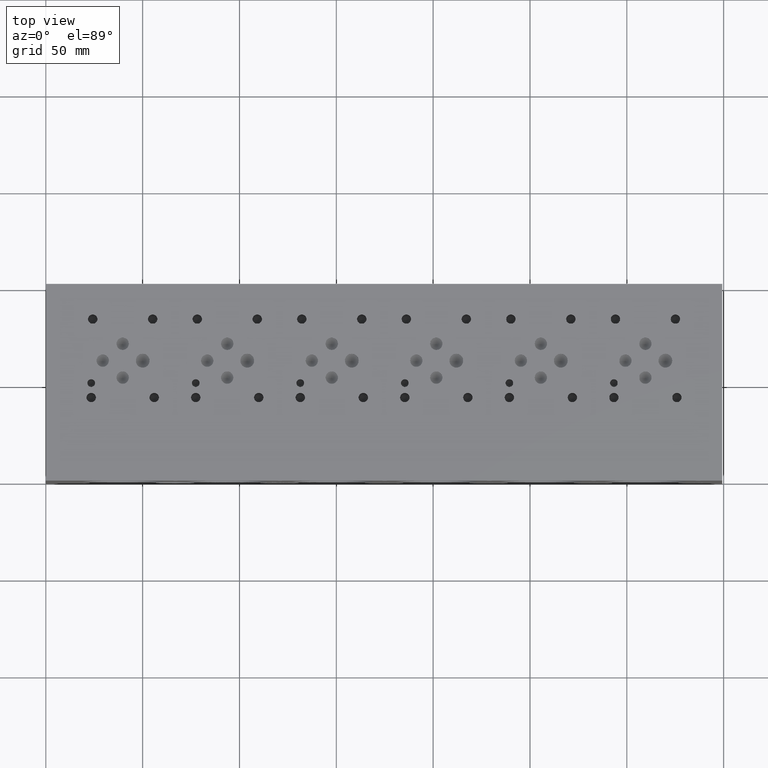
[diagram: clean part render]
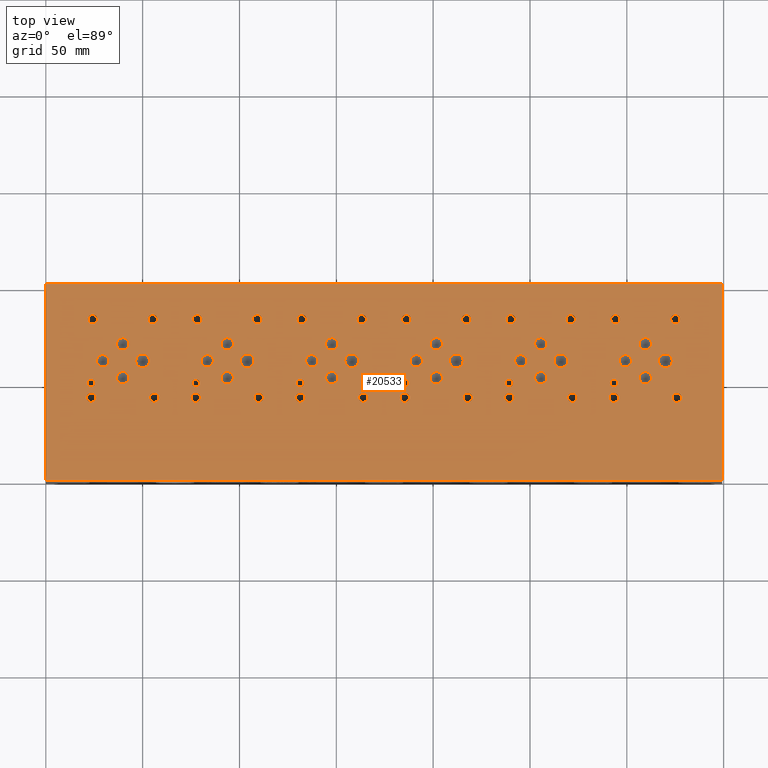
[diagram: same view with one face highlighted and labeled with its STEP entity id]
A machine part, top view. The second image highlights one B-rep face of the part: STEP entity #20533.
In plain terms, the highlighted planar face has unit normal (0, 0, 1).
Its self-contained STEP definition (entity closure, byte-faithful):
#982=CIRCLE('',#21623,3.5687);
#983=CIRCLE('',#21624,3.5687);
#986=CIRCLE('',#21629,3.5687);
#987=CIRCLE('',#21630,3.5687);
#990=CIRCLE('',#21635,3.5687);
#991=CIRCLE('',#21636,3.5687);
#994=CIRCLE('',#21641,3.5687);
#995=CIRCLE('',#21642,3.5687);
#998=CIRCLE('',#21647,3.5687);
#999=CIRCLE('',#21648,3.5687);
#1002=CIRCLE('',#21653,3.5687);
#1003=CIRCLE('',#21654,3.5687);
#1006=CIRCLE('',#21659,3.175);
#1007=CIRCLE('',#21660,3.175);
#1010=CIRCLE('',#21665,3.175);
#1011=CIRCLE('',#21666,3.175);
#1014=CIRCLE('',#21671,3.175);
#1015=CIRCLE('',#21672,3.175);
#1018=CIRCLE('',#21677,3.175);
#1019=CIRCLE('',#21678,3.175);
#1022=CIRCLE('',#21683,3.175);
#1023=CIRCLE('',#21684,3.175);
#1026=CIRCLE('',#21689,3.175);
#1027=CIRCLE('',#21690,3.175);
#1030=CIRCLE('',#21695,3.175);
#1031=CIRCLE('',#21696,3.175);
#1034=CIRCLE('',#21701,3.175);
#1035=CIRCLE('',#21702,3.175);
#1038=CIRCLE('',#21707,3.175);
#1039=CIRCLE('',#21708,3.175);
#1042=CIRCLE('',#21713,3.175);
#1043=CIRCLE('',#21714,3.175);
#1046=CIRCLE('',#21719,3.175);
#1047=CIRCLE('',#21720,3.175);
#1050=CIRCLE('',#21725,3.175);
#1051=CIRCLE('',#21726,3.175);
#1054=CIRCLE('',#21731,3.175);
#1055=CIRCLE('',#21732,3.175);
#1058=CIRCLE('',#21737,3.175);
#1059=CIRCLE('',#21738,3.175);
#1062=CIRCLE('',#21743,3.175);
#1063=CIRCLE('',#21744,3.175);
#1066=CIRCLE('',#21749,3.175);
#1067=CIRCLE('',#21750,3.175);
#1070=CIRCLE('',#21755,3.175);
#1071=CIRCLE('',#21756,3.175);
#1074=CIRCLE('',#21761,3.175);
#1075=CIRCLE('',#21762,3.175);
#1078=CIRCLE('',#21767,1.9812);
#1079=CIRCLE('',#21768,1.9812);
#1082=CIRCLE('',#21773,1.9812);
#1083=CIRCLE('',#21774,1.9812);
#1086=CIRCLE('',#21779,1.9812);
#1087=CIRCLE('',#21780,1.9812);
#1090=CIRCLE('',#21785,1.9812);
#1091=CIRCLE('',#21786,1.9812);
#1094=CIRCLE('',#21791,1.9812);
#1095=CIRCLE('',#21792,1.9812);
#1098=CIRCLE('',#21797,1.9812);
#1099=CIRCLE('',#21798,1.9812);
#1105=CIRCLE('',#21807,2.413);
#1106=CIRCLE('',#21808,2.413);
#1112=CIRCLE('',#21818,2.413);
#1113=CIRCLE('',#21819,2.413);
#1119=CIRCLE('',#21829,2.413);
#1120=CIRCLE('',#21830,2.413);
#1126=CIRCLE('',#21840,2.413);
#1127=CIRCLE('',#21841,2.413);
#1133=CIRCLE('',#21851,2.413);
#1134=CIRCLE('',#21852,2.413);
#1140=CIRCLE('',#21862,2.413);
#1141=CIRCLE('',#21863,2.413);
#1147=CIRCLE('',#21873,2.413);
#1148=CIRCLE('',#21874,2.413);
#1154=CIRCLE('',#21884,2.413);
#1155=CIRCLE('',#21885,2.413);
#1161=CIRCLE('',#21895,2.413);
#1162=CIRCLE('',#21896,2.413);
#1168=CIRCLE('',#21906,2.413);
#1169=CIRCLE('',#21907,2.413);
#1175=CIRCLE('',#21917,2.413);
#1176=CIRCLE('',#21918,2.413);
#1182=CIRCLE('',#21928,2.413);
#1183=CIRCLE('',#21929,2.413);
#1189=CIRCLE('',#21939,2.413);
#1190=CIRCLE('',#21940,2.413);
#1196=CIRCLE('',#21950,2.413);
#1197=CIRCLE('',#21951,2.413);
#1203=CIRCLE('',#21961,2.413);
#1204=CIRCLE('',#21962,2.413);
#1210=CIRCLE('',#21972,2.413);
#1211=CIRCLE('',#21973,2.413);
#1217=CIRCLE('',#21983,2.413);
#1218=CIRCLE('',#21984,2.413);
#1224=CIRCLE('',#21994,2.413);
#1225=CIRCLE('',#21995,2.413);
#1231=CIRCLE('',#22005,2.413);
#1232=CIRCLE('',#22006,2.413);
#1238=CIRCLE('',#22016,2.413);
#1239=CIRCLE('',#22017,2.413);
#1245=CIRCLE('',#22027,2.413);
#1246=CIRCLE('',#22028,2.413);
#1252=CIRCLE('',#22038,2.413);
#1253=CIRCLE('',#22039,2.413);
#1259=CIRCLE('',#22049,2.413);
#1260=CIRCLE('',#22050,2.413);
#1266=CIRCLE('',#22060,2.413);
#1267=CIRCLE('',#22061,2.413);
#1908=FACE_BOUND('',#4265,.T.);
#1909=FACE_BOUND('',#4266,.T.);
#1910=FACE_BOUND('',#4267,.T.);
#1911=FACE_BOUND('',#4268,.T.);
#1912=FACE_BOUND('',#4269,.T.);
#1913=FACE_BOUND('',#4270,.T.);
#1914=FACE_BOUND('',#4271,.T.);
#1915=FACE_BOUND('',#4272,.T.);
#1916=FACE_BOUND('',#4273,.T.);
#1917=FACE_BOUND('',#4274,.T.);
#1918=FACE_BOUND('',#4275,.T.);
#1919=FACE_BOUND('',#4276,.T.);
#1920=FACE_BOUND('',#4277,.T.);
#1921=FACE_BOUND('',#4278,.T.);
#1922=FACE_BOUND('',#4279,.T.);
#1923=FACE_BOUND('',#4280,.T.);
#1924=FACE_BOUND('',#4281,.T.);
#1925=FACE_BOUND('',#4282,.T.);
#1926=FACE_BOUND('',#4283,.T.);
#1927=FACE_BOUND('',#4284,.T.);
#1928=FACE_BOUND('',#4285,.T.);
#1929=FACE_BOUND('',#4286,.T.);
#1930=FACE_BOUND('',#4287,.T.);
#1931=FACE_BOUND('',#4288,.T.);
#1932=FACE_BOUND('',#4289,.T.);
#1933=FACE_BOUND('',#4290,.T.);
#1934=FACE_BOUND('',#4291,.T.);
#1935=FACE_BOUND('',#4292,.T.);
#1936=FACE_BOUND('',#4293,.T.);
#1937=FACE_BOUND('',#4294,.T.);
#1938=FACE_BOUND('',#4295,.T.);
#1939=FACE_BOUND('',#4296,.T.);
#1940=FACE_BOUND('',#4297,.T.);
#1941=FACE_BOUND('',#4298,.T.);
#1942=FACE_BOUND('',#4299,.T.);
#1943=FACE_BOUND('',#4300,.T.);
#1944=FACE_BOUND('',#4301,.T.);
#1945=FACE_BOUND('',#4302,.T.);
#1946=FACE_BOUND('',#4303,.T.);
#1947=FACE_BOUND('',#4304,.T.);
#1948=FACE_BOUND('',#4305,.T.);
#1949=FACE_BOUND('',#4306,.T.);
#1950=FACE_BOUND('',#4307,.T.);
#1951=FACE_BOUND('',#4308,.T.);
#1952=FACE_BOUND('',#4309,.T.);
#1953=FACE_BOUND('',#4310,.T.);
#1954=FACE_BOUND('',#4311,.T.);
#1955=FACE_BOUND('',#4312,.T.);
#1956=FACE_BOUND('',#4313,.T.);
#1957=FACE_BOUND('',#4314,.T.);
#1958=FACE_BOUND('',#4315,.T.);
#1959=FACE_BOUND('',#4316,.T.);
#1960=FACE_BOUND('',#4317,.T.);
#1961=FACE_BOUND('',#4318,.T.);
#3035=FACE_OUTER_BOUND('',#4264,.T.);
#4264=EDGE_LOOP('',(#18181,#18182,#18183,#18184));
#4265=EDGE_LOOP('',(#18185,#18186));
#4266=EDGE_LOOP('',(#18187,#18188));
#4267=EDGE_LOOP('',(#18189,#18190));
#4268=EDGE_LOOP('',(#18191,#18192));
#4269=EDGE_LOOP('',(#18193,#18194));
#4270=EDGE_LOOP('',(#18195,#18196));
#4271=EDGE_LOOP('',(#18197,#18198));
#4272=EDGE_LOOP('',(#18199,#18200));
#4273=EDGE_LOOP('',(#18201,#18202));
#4274=EDGE_LOOP('',(#18203,#18204));
#4275=EDGE_LOOP('',(#18205,#18206));
#4276=EDGE_LOOP('',(#18207,#18208));
#4277=EDGE_LOOP('',(#18209,#18210));
#4278=EDGE_LOOP('',(#18211,#18212));
#4279=EDGE_LOOP('',(#18213,#18214));
#4280=EDGE_LOOP('',(#18215,#18216));
#4281=EDGE_LOOP('',(#18217,#18218));
#4282=EDGE_LOOP('',(#18219,#18220));
#4283=EDGE_LOOP('',(#18221,#18222));
#4284=EDGE_LOOP('',(#18223,#18224));
#4285=EDGE_LOOP('',(#18225,#18226));
#4286=EDGE_LOOP('',(#18227,#18228));
#4287=EDGE_LOOP('',(#18229,#18230));
#4288=EDGE_LOOP('',(#18231,#18232));
#4289=EDGE_LOOP('',(#18233,#18234));
#4290=EDGE_LOOP('',(#18235,#18236));
#4291=EDGE_LOOP('',(#18237,#18238));
#4292=EDGE_LOOP('',(#18239,#18240));
#4293=EDGE_LOOP('',(#18241,#18242));
#4294=EDGE_LOOP('',(#18243,#18244));
#4295=EDGE_LOOP('',(#18245,#18246));
#4296=EDGE_LOOP('',(#18247,#18248));
#4297=EDGE_LOOP('',(#18249,#18250));
#4298=EDGE_LOOP('',(#18251,#18252));
#4299=EDGE_LOOP('',(#18253,#18254));
#4300=EDGE_LOOP('',(#18255,#18256));
#4301=EDGE_LOOP('',(#18257,#18258));
#4302=EDGE_LOOP('',(#18259,#18260));
#4303=EDGE_LOOP('',(#18261,#18262));
#4304=EDGE_LOOP('',(#18263,#18264));
#4305=EDGE_LOOP('',(#18265,#18266));
#4306=EDGE_LOOP('',(#18267,#18268));
#4307=EDGE_LOOP('',(#18269,#18270));
#4308=EDGE_LOOP('',(#18271,#18272));
#4309=EDGE_LOOP('',(#18273,#18274));
#4310=EDGE_LOOP('',(#18275,#18276));
#4311=EDGE_LOOP('',(#18277,#18278));
#4312=EDGE_LOOP('',(#18279,#18280));
#4313=EDGE_LOOP('',(#18281,#18282));
#4314=EDGE_LOOP('',(#18283,#18284));
#4315=EDGE_LOOP('',(#18285,#18286));
#4316=EDGE_LOOP('',(#18287,#18288));
#4317=EDGE_LOOP('',(#18289,#18290));
#4318=EDGE_LOOP('',(#18291,#18292));
#4355=LINE('',#26877,#6046);
#5224=LINE('',#31486,#6915);
#5282=LINE('',#31757,#6973);
#6010=LINE('',#35897,#7701);
#6046=VECTOR('',#22132,10.);
#6915=VECTOR('',#23547,10.);
#6973=VECTOR('',#23659,10.);
#7701=VECTOR('',#26793,10.);
#7726=VERTEX_POINT('',#26874);
#7727=VERTEX_POINT('',#26876);
#8602=VERTEX_POINT('',#31484);
#8660=VERTEX_POINT('',#31756);
#9363=VERTEX_POINT('',#34984);
#9364=VERTEX_POINT('',#34985);
#9368=VERTEX_POINT('',#34997);
#9369=VERTEX_POINT('',#34998);
#9373=VERTEX_POINT('',#35010);
#9374=VERTEX_POINT('',#35011);
#9378=VERTEX_POINT('',#35023);
#9379=VERTEX_POINT('',#35024);
#9383=VERTEX_POINT('',#35036);
#9384=VERTEX_POINT('',#35037);
#9388=VERTEX_POINT('',#35049);
#9389=VERTEX_POINT('',#35050);
#9393=VERTEX_POINT('',#35062);
#9394=VERTEX_POINT('',#35063);
#9398=VERTEX_POINT('',#35075);
#9399=VERTEX_POINT('',#35076);
#9403=VERTEX_POINT('',#35088);
#9404=VERTEX_POINT('',#35089);
#9408=VERTEX_POINT('',#35101);
#9409=VERTEX_POINT('',#35102);
#9413=VERTEX_POINT('',#35114);
#9414=VERTEX_POINT('',#35115);
#9418=VERTEX_POINT('',#35127);
#9419=VERTEX_POINT('',#35128);
#9423=VERTEX_POINT('',#35140);
#9424=VERTEX_POINT('',#35141);
#9428=VERTEX_POINT('',#35153);
#9429=VERTEX_POINT('',#35154);
#9433=VERTEX_POINT('',#35166);
#9434=VERTEX_POINT('',#35167);
#9438=VERTEX_POINT('',#35179);
#9439=VERTEX_POINT('',#35180);
#9443=VERTEX_POINT('',#35192);
#9444=VERTEX_POINT('',#35193);
#9448=VERTEX_POINT('',#35205);
#9449=VERTEX_POINT('',#35206);
#9453=VERTEX_POINT('',#35218);
#9454=VERTEX_POINT('',#35219);
#9458=VERTEX_POINT('',#35231);
#9459=VERTEX_POINT('',#35232);
#9463=VERTEX_POINT('',#35244);
#9464=VERTEX_POINT('',#35245);
#9468=VERTEX_POINT('',#35257);
#9469=VERTEX_POINT('',#35258);
#9473=VERTEX_POINT('',#35270);
#9474=VERTEX_POINT('',#35271);
#9478=VERTEX_POINT('',#35283);
#9479=VERTEX_POINT('',#35284);
#9483=VERTEX_POINT('',#35296);
#9484=VERTEX_POINT('',#35297);
#9488=VERTEX_POINT('',#35309);
#9489=VERTEX_POINT('',#35310);
#9493=VERTEX_POINT('',#35322);
#9494=VERTEX_POINT('',#35323);
#9498=VERTEX_POINT('',#35335);
#9499=VERTEX_POINT('',#35336);
#9503=VERTEX_POINT('',#35348);
#9504=VERTEX_POINT('',#35349);
#9508=VERTEX_POINT('',#35361);
#9509=VERTEX_POINT('',#35362);
#9516=VERTEX_POINT('',#35381);
#9517=VERTEX_POINT('',#35382);
#9524=VERTEX_POINT('',#35403);
#9525=VERTEX_POINT('',#35404);
#9532=VERTEX_POINT('',#35425);
#9533=VERTEX_POINT('',#35426);
#9540=VERTEX_POINT('',#35447);
#9541=VERTEX_POINT('',#35448);
#9548=VERTEX_POINT('',#35469);
#9549=VERTEX_POINT('',#35470);
#9556=VERTEX_POINT('',#35491);
#9557=VERTEX_POINT('',#35492);
#9564=VERTEX_POINT('',#35513);
#9565=VERTEX_POINT('',#35514);
#9572=VERTEX_POINT('',#35535);
#9573=VERTEX_POINT('',#35536);
#9580=VERTEX_POINT('',#35557);
#9581=VERTEX_POINT('',#35558);
#9588=VERTEX_POINT('',#35579);
#9589=VERTEX_POINT('',#35580);
#9596=VERTEX_POINT('',#35601);
#9597=VERTEX_POINT('',#35602);
#9604=VERTEX_POINT('',#35623);
#9605=VERTEX_POINT('',#35624);
#9612=VERTEX_POINT('',#35645);
#9613=VERTEX_POINT('',#35646);
#9620=VERTEX_POINT('',#35667);
#9621=VERTEX_POINT('',#35668);
#9628=VERTEX_POINT('',#35689);
#9629=VERTEX_POINT('',#35690);
#9636=VERTEX_POINT('',#35711);
#9637=VERTEX_POINT('',#35712);
#9644=VERTEX_POINT('',#35733);
#9645=VERTEX_POINT('',#35734);
#9652=VERTEX_POINT('',#35755);
#9653=VERTEX_POINT('',#35756);
#9660=VERTEX_POINT('',#35777);
#9661=VERTEX_POINT('',#35778);
#9668=VERTEX_POINT('',#35799);
#9669=VERTEX_POINT('',#35800);
#9676=VERTEX_POINT('',#35821);
#9677=VERTEX_POINT('',#35822);
#9684=VERTEX_POINT('',#35843);
#9685=VERTEX_POINT('',#35844);
#9692=VERTEX_POINT('',#35865);
#9693=VERTEX_POINT('',#35866);
#9700=VERTEX_POINT('',#35887);
#9701=VERTEX_POINT('',#35888);
#9737=EDGE_CURVE('',#7727,#7726,#4355,.T.);
#10978=EDGE_CURVE('',#7726,#8602,#5224,.T.);
#11060=EDGE_CURVE('',#8660,#7727,#5282,.T.);
#12148=EDGE_CURVE('',#9363,#9364,#982,.T.);
#12149=EDGE_CURVE('',#9364,#9363,#983,.T.);
#12154=EDGE_CURVE('',#9368,#9369,#986,.T.);
#12155=EDGE_CURVE('',#9369,#9368,#987,.T.);
#12160=EDGE_CURVE('',#9373,#9374,#990,.T.);
#12161=EDGE_CURVE('',#9374,#9373,#991,.T.);
#12166=EDGE_CURVE('',#9378,#9379,#994,.T.);
#12167=EDGE_CURVE('',#9379,#9378,#995,.T.);
#12172=EDGE_CURVE('',#9383,#9384,#998,.T.);
#12173=EDGE_CURVE('',#9384,#9383,#999,.T.);
#12178=EDGE_CURVE('',#9388,#9389,#1002,.T.);
#12179=EDGE_CURVE('',#9389,#9388,#1003,.T.);
#12184=EDGE_CURVE('',#9393,#9394,#1006,.T.);
#12185=EDGE_CURVE('',#9394,#9393,#1007,.T.);
#12190=EDGE_CURVE('',#9398,#9399,#1010,.T.);
#12191=EDGE_CURVE('',#9399,#9398,#1011,.T.);
#12196=EDGE_CURVE('',#9403,#9404,#1014,.T.);
#12197=EDGE_CURVE('',#9404,#9403,#1015,.T.);
#12202=EDGE_CURVE('',#9408,#9409,#1018,.T.);
#12203=EDGE_CURVE('',#9409,#9408,#1019,.T.);
#12208=EDGE_CURVE('',#9413,#9414,#1022,.T.);
#12209=EDGE_CURVE('',#9414,#9413,#1023,.T.);
#12214=EDGE_CURVE('',#9418,#9419,#1026,.T.);
#12215=EDGE_CURVE('',#9419,#9418,#1027,.T.);
#12220=EDGE_CURVE('',#9423,#9424,#1030,.T.);
#12221=EDGE_CURVE('',#9424,#9423,#1031,.T.);
#12226=EDGE_CURVE('',#9428,#9429,#1034,.T.);
#12227=EDGE_CURVE('',#9429,#9428,#1035,.T.);
#12232=EDGE_CURVE('',#9433,#9434,#1038,.T.);
#12233=EDGE_CURVE('',#9434,#9433,#1039,.T.);
#12238=EDGE_CURVE('',#9438,#9439,#1042,.T.);
#12239=EDGE_CURVE('',#9439,#9438,#1043,.T.);
#12244=EDGE_CURVE('',#9443,#9444,#1046,.T.);
#12245=EDGE_CURVE('',#9444,#9443,#1047,.T.);
#12250=EDGE_CURVE('',#9448,#9449,#1050,.T.);
#12251=EDGE_CURVE('',#9449,#9448,#1051,.T.);
#12256=EDGE_CURVE('',#9453,#9454,#1054,.T.);
#12257=EDGE_CURVE('',#9454,#9453,#1055,.T.);
#12262=EDGE_CURVE('',#9458,#9459,#1058,.T.);
#12263=EDGE_CURVE('',#9459,#9458,#1059,.T.);
#12268=EDGE_CURVE('',#9463,#9464,#1062,.T.);
#12269=EDGE_CURVE('',#9464,#9463,#1063,.T.);
#12274=EDGE_CURVE('',#9468,#9469,#1066,.T.);
#12275=EDGE_CURVE('',#9469,#9468,#1067,.T.);
#12280=EDGE_CURVE('',#9473,#9474,#1070,.T.);
#12281=EDGE_CURVE('',#9474,#9473,#1071,.T.);
#12286=EDGE_CURVE('',#9478,#9479,#1074,.T.);
#12287=EDGE_CURVE('',#9479,#9478,#1075,.T.);
#12292=EDGE_CURVE('',#9483,#9484,#1078,.T.);
#12293=EDGE_CURVE('',#9484,#9483,#1079,.T.);
#12298=EDGE_CURVE('',#9488,#9489,#1082,.T.);
#12299=EDGE_CURVE('',#9489,#9488,#1083,.T.);
#12304=EDGE_CURVE('',#9493,#9494,#1086,.T.);
#12305=EDGE_CURVE('',#9494,#9493,#1087,.T.);
#12310=EDGE_CURVE('',#9498,#9499,#1090,.T.);
#12311=EDGE_CURVE('',#9499,#9498,#1091,.T.);
#12316=EDGE_CURVE('',#9503,#9504,#1094,.T.);
#12317=EDGE_CURVE('',#9504,#9503,#1095,.T.);
#12322=EDGE_CURVE('',#9508,#9509,#1098,.T.);
#12323=EDGE_CURVE('',#9509,#9508,#1099,.T.);
#12331=EDGE_CURVE('',#9516,#9517,#1105,.T.);
#12332=EDGE_CURVE('',#9517,#9516,#1106,.T.);
#12341=EDGE_CURVE('',#9524,#9525,#1112,.T.);
#12342=EDGE_CURVE('',#9525,#9524,#1113,.T.);
#12351=EDGE_CURVE('',#9532,#9533,#1119,.T.);
#12352=EDGE_CURVE('',#9533,#9532,#1120,.T.);
#12361=EDGE_CURVE('',#9540,#9541,#1126,.T.);
#12362=EDGE_CURVE('',#9541,#9540,#1127,.T.);
#12371=EDGE_CURVE('',#9548,#9549,#1133,.T.);
#12372=EDGE_CURVE('',#9549,#9548,#1134,.T.);
#12381=EDGE_CURVE('',#9556,#9557,#1140,.T.);
#12382=EDGE_CURVE('',#9557,#9556,#1141,.T.);
#12391=EDGE_CURVE('',#9564,#9565,#1147,.T.);
#12392=EDGE_CURVE('',#9565,#9564,#1148,.T.);
#12401=EDGE_CURVE('',#9572,#9573,#1154,.T.);
#12402=EDGE_CURVE('',#9573,#9572,#1155,.T.);
#12411=EDGE_CURVE('',#9580,#9581,#1161,.T.);
#12412=EDGE_CURVE('',#9581,#9580,#1162,.T.);
#12421=EDGE_CURVE('',#9588,#9589,#1168,.T.);
#12422=EDGE_CURVE('',#9589,#9588,#1169,.T.);
#12431=EDGE_CURVE('',#9596,#9597,#1175,.T.);
#12432=EDGE_CURVE('',#9597,#9596,#1176,.T.);
#12441=EDGE_CURVE('',#9604,#9605,#1182,.T.);
#12442=EDGE_CURVE('',#9605,#9604,#1183,.T.);
#12451=EDGE_CURVE('',#9612,#9613,#1189,.T.);
#12452=EDGE_CURVE('',#9613,#9612,#1190,.T.);
#12461=EDGE_CURVE('',#9620,#9621,#1196,.T.);
#12462=EDGE_CURVE('',#9621,#9620,#1197,.T.);
#12471=EDGE_CURVE('',#9628,#9629,#1203,.T.);
#12472=EDGE_CURVE('',#9629,#9628,#1204,.T.);
#12481=EDGE_CURVE('',#9636,#9637,#1210,.T.);
#12482=EDGE_CURVE('',#9637,#9636,#1211,.T.);
#12491=EDGE_CURVE('',#9644,#9645,#1217,.T.);
#12492=EDGE_CURVE('',#9645,#9644,#1218,.T.);
#12501=EDGE_CURVE('',#9652,#9653,#1224,.T.);
#12502=EDGE_CURVE('',#9653,#9652,#1225,.T.);
#12511=EDGE_CURVE('',#9660,#9661,#1231,.T.);
#12512=EDGE_CURVE('',#9661,#9660,#1232,.T.);
#12521=EDGE_CURVE('',#9668,#9669,#1238,.T.);
#12522=EDGE_CURVE('',#9669,#9668,#1239,.T.);
#12531=EDGE_CURVE('',#9676,#9677,#1245,.T.);
#12532=EDGE_CURVE('',#9677,#9676,#1246,.T.);
#12541=EDGE_CURVE('',#9684,#9685,#1252,.T.);
#12542=EDGE_CURVE('',#9685,#9684,#1253,.T.);
#12551=EDGE_CURVE('',#9692,#9693,#1259,.T.);
#12552=EDGE_CURVE('',#9693,#9692,#1260,.T.);
#12561=EDGE_CURVE('',#9700,#9701,#1266,.T.);
#12562=EDGE_CURVE('',#9701,#9700,#1267,.T.);
#12566=EDGE_CURVE('',#8602,#8660,#6010,.T.);
#18181=ORIENTED_EDGE('',*,*,#9737,.T.);
#18182=ORIENTED_EDGE('',*,*,#10978,.T.);
#18183=ORIENTED_EDGE('',*,*,#12566,.T.);
#18184=ORIENTED_EDGE('',*,*,#11060,.T.);
#18185=ORIENTED_EDGE('',*,*,#12148,.T.);
#18186=ORIENTED_EDGE('',*,*,#12149,.T.);
#18187=ORIENTED_EDGE('',*,*,#12154,.T.);
#18188=ORIENTED_EDGE('',*,*,#12155,.T.);
#18189=ORIENTED_EDGE('',*,*,#12160,.T.);
#18190=ORIENTED_EDGE('',*,*,#12161,.T.);
#18191=ORIENTED_EDGE('',*,*,#12166,.T.);
#18192=ORIENTED_EDGE('',*,*,#12167,.T.);
#18193=ORIENTED_EDGE('',*,*,#12172,.T.);
#18194=ORIENTED_EDGE('',*,*,#12173,.T.);
#18195=ORIENTED_EDGE('',*,*,#12178,.T.);
#18196=ORIENTED_EDGE('',*,*,#12179,.T.);
#18197=ORIENTED_EDGE('',*,*,#12184,.T.);
#18198=ORIENTED_EDGE('',*,*,#12185,.T.);
#18199=ORIENTED_EDGE('',*,*,#12190,.T.);
#18200=ORIENTED_EDGE('',*,*,#12191,.T.);
#18201=ORIENTED_EDGE('',*,*,#12196,.T.);
#18202=ORIENTED_EDGE('',*,*,#12197,.T.);
#18203=ORIENTED_EDGE('',*,*,#12202,.T.);
#18204=ORIENTED_EDGE('',*,*,#12203,.T.);
#18205=ORIENTED_EDGE('',*,*,#12208,.T.);
#18206=ORIENTED_EDGE('',*,*,#12209,.T.);
#18207=ORIENTED_EDGE('',*,*,#12214,.T.);
#18208=ORIENTED_EDGE('',*,*,#12215,.T.);
#18209=ORIENTED_EDGE('',*,*,#12220,.T.);
#18210=ORIENTED_EDGE('',*,*,#12221,.T.);
#18211=ORIENTED_EDGE('',*,*,#12226,.T.);
#18212=ORIENTED_EDGE('',*,*,#12227,.T.);
#18213=ORIENTED_EDGE('',*,*,#12232,.T.);
#18214=ORIENTED_EDGE('',*,*,#12233,.T.);
#18215=ORIENTED_EDGE('',*,*,#12238,.T.);
#18216=ORIENTED_EDGE('',*,*,#12239,.T.);
#18217=ORIENTED_EDGE('',*,*,#12244,.T.);
#18218=ORIENTED_EDGE('',*,*,#12245,.T.);
#18219=ORIENTED_EDGE('',*,*,#12250,.T.);
#18220=ORIENTED_EDGE('',*,*,#12251,.T.);
#18221=ORIENTED_EDGE('',*,*,#12256,.T.);
#18222=ORIENTED_EDGE('',*,*,#12257,.T.);
#18223=ORIENTED_EDGE('',*,*,#12262,.T.);
#18224=ORIENTED_EDGE('',*,*,#12263,.T.);
#18225=ORIENTED_EDGE('',*,*,#12268,.T.);
#18226=ORIENTED_EDGE('',*,*,#12269,.T.);
#18227=ORIENTED_EDGE('',*,*,#12274,.T.);
#18228=ORIENTED_EDGE('',*,*,#12275,.T.);
#18229=ORIENTED_EDGE('',*,*,#12280,.T.);
#18230=ORIENTED_EDGE('',*,*,#12281,.T.);
#18231=ORIENTED_EDGE('',*,*,#12286,.T.);
#18232=ORIENTED_EDGE('',*,*,#12287,.T.);
#18233=ORIENTED_EDGE('',*,*,#12292,.T.);
#18234=ORIENTED_EDGE('',*,*,#12293,.T.);
#18235=ORIENTED_EDGE('',*,*,#12298,.T.);
#18236=ORIENTED_EDGE('',*,*,#12299,.T.);
#18237=ORIENTED_EDGE('',*,*,#12304,.T.);
#18238=ORIENTED_EDGE('',*,*,#12305,.T.);
#18239=ORIENTED_EDGE('',*,*,#12310,.T.);
#18240=ORIENTED_EDGE('',*,*,#12311,.T.);
#18241=ORIENTED_EDGE('',*,*,#12316,.T.);
#18242=ORIENTED_EDGE('',*,*,#12317,.T.);
#18243=ORIENTED_EDGE('',*,*,#12322,.T.);
#18244=ORIENTED_EDGE('',*,*,#12323,.T.);
#18245=ORIENTED_EDGE('',*,*,#12331,.T.);
#18246=ORIENTED_EDGE('',*,*,#12332,.T.);
#18247=ORIENTED_EDGE('',*,*,#12341,.T.);
#18248=ORIENTED_EDGE('',*,*,#12342,.T.);
#18249=ORIENTED_EDGE('',*,*,#12351,.T.);
#18250=ORIENTED_EDGE('',*,*,#12352,.T.);
#18251=ORIENTED_EDGE('',*,*,#12361,.T.);
#18252=ORIENTED_EDGE('',*,*,#12362,.T.);
#18253=ORIENTED_EDGE('',*,*,#12371,.T.);
#18254=ORIENTED_EDGE('',*,*,#12372,.T.);
#18255=ORIENTED_EDGE('',*,*,#12381,.T.);
#18256=ORIENTED_EDGE('',*,*,#12382,.T.);
#18257=ORIENTED_EDGE('',*,*,#12391,.T.);
#18258=ORIENTED_EDGE('',*,*,#12392,.T.);
#18259=ORIENTED_EDGE('',*,*,#12401,.T.);
#18260=ORIENTED_EDGE('',*,*,#12402,.T.);
#18261=ORIENTED_EDGE('',*,*,#12411,.T.);
#18262=ORIENTED_EDGE('',*,*,#12412,.T.);
#18263=ORIENTED_EDGE('',*,*,#12421,.T.);
#18264=ORIENTED_EDGE('',*,*,#12422,.T.);
#18265=ORIENTED_EDGE('',*,*,#12431,.T.);
#18266=ORIENTED_EDGE('',*,*,#12432,.T.);
#18267=ORIENTED_EDGE('',*,*,#12441,.T.);
#18268=ORIENTED_EDGE('',*,*,#12442,.T.);
#18269=ORIENTED_EDGE('',*,*,#12451,.T.);
#18270=ORIENTED_EDGE('',*,*,#12452,.T.);
#18271=ORIENTED_EDGE('',*,*,#12461,.T.);
#18272=ORIENTED_EDGE('',*,*,#12462,.T.);
#18273=ORIENTED_EDGE('',*,*,#12471,.T.);
#18274=ORIENTED_EDGE('',*,*,#12472,.T.);
#18275=ORIENTED_EDGE('',*,*,#12481,.T.);
#18276=ORIENTED_EDGE('',*,*,#12482,.T.);
#18277=ORIENTED_EDGE('',*,*,#12491,.T.);
#18278=ORIENTED_EDGE('',*,*,#12492,.T.);
#18279=ORIENTED_EDGE('',*,*,#12501,.T.);
#18280=ORIENTED_EDGE('',*,*,#12502,.T.);
#18281=ORIENTED_EDGE('',*,*,#12511,.T.);
#18282=ORIENTED_EDGE('',*,*,#12512,.T.);
#18283=ORIENTED_EDGE('',*,*,#12521,.T.);
#18284=ORIENTED_EDGE('',*,*,#12522,.T.);
#18285=ORIENTED_EDGE('',*,*,#12531,.T.);
#18286=ORIENTED_EDGE('',*,*,#12532,.T.);
#18287=ORIENTED_EDGE('',*,*,#12541,.T.);
#18288=ORIENTED_EDGE('',*,*,#12542,.T.);
#18289=ORIENTED_EDGE('',*,*,#12551,.T.);
#18290=ORIENTED_EDGE('',*,*,#12552,.T.);
#18291=ORIENTED_EDGE('',*,*,#12561,.T.);
#18292=ORIENTED_EDGE('',*,*,#12562,.T.);
#18804=PLANE('',#22067);
#20533=ADVANCED_FACE('',(#3035,#1908,#1909,#1910,#1911,#1912,#1913,#1914,
#1915,#1916,#1917,#1918,#1919,#1920,#1921,#1922,#1923,#1924,#1925,#1926,
#1927,#1928,#1929,#1930,#1931,#1932,#1933,#1934,#1935,#1936,#1937,#1938,
#1939,#1940,#1941,#1942,#1943,#1944,#1945,#1946,#1947,#1948,#1949,#1950,
#1951,#1952,#1953,#1954,#1955,#1956,#1957,#1958,#1959,#1960,#1961),#18804,
 .T.);
#21623=AXIS2_PLACEMENT_3D('',#34986,#25777,#25778);
#21624=AXIS2_PLACEMENT_3D('',#34987,#25779,#25780);
#21629=AXIS2_PLACEMENT_3D('',#34999,#25791,#25792);
#21630=AXIS2_PLACEMENT_3D('',#35000,#25793,#25794);
#21635=AXIS2_PLACEMENT_3D('',#35012,#25805,#25806);
#21636=AXIS2_PLACEMENT_3D('',#35013,#25807,#25808);
#21641=AXIS2_PLACEMENT_3D('',#35025,#25819,#25820);
#21642=AXIS2_PLACEMENT_3D('',#35026,#25821,#25822);
#21647=AXIS2_PLACEMENT_3D('',#35038,#25833,#25834);
#21648=AXIS2_PLACEMENT_3D('',#35039,#25835,#25836);
#21653=AXIS2_PLACEMENT_3D('',#35051,#25847,#25848);
#21654=AXIS2_PLACEMENT_3D('',#35052,#25849,#25850);
#21659=AXIS2_PLACEMENT_3D('',#35064,#25861,#25862);
#21660=AXIS2_PLACEMENT_3D('',#35065,#25863,#25864);
#21665=AXIS2_PLACEMENT_3D('',#35077,#25875,#25876);
#21666=AXIS2_PLACEMENT_3D('',#35078,#25877,#25878);
#21671=AXIS2_PLACEMENT_3D('',#35090,#25889,#25890);
#21672=AXIS2_PLACEMENT_3D('',#35091,#25891,#25892);
#21677=AXIS2_PLACEMENT_3D('',#35103,#25903,#25904);
#21678=AXIS2_PLACEMENT_3D('',#35104,#25905,#25906);
#21683=AXIS2_PLACEMENT_3D('',#35116,#25917,#25918);
#21684=AXIS2_PLACEMENT_3D('',#35117,#25919,#25920);
#21689=AXIS2_PLACEMENT_3D('',#35129,#25931,#25932);
#21690=AXIS2_PLACEMENT_3D('',#35130,#25933,#25934);
#21695=AXIS2_PLACEMENT_3D('',#35142,#25945,#25946);
#21696=AXIS2_PLACEMENT_3D('',#35143,#25947,#25948);
#21701=AXIS2_PLACEMENT_3D('',#35155,#25959,#25960);
#21702=AXIS2_PLACEMENT_3D('',#35156,#25961,#25962);
#21707=AXIS2_PLACEMENT_3D('',#35168,#25973,#25974);
#21708=AXIS2_PLACEMENT_3D('',#35169,#25975,#25976);
#21713=AXIS2_PLACEMENT_3D('',#35181,#25987,#25988);
#21714=AXIS2_PLACEMENT_3D('',#35182,#25989,#25990);
#21719=AXIS2_PLACEMENT_3D('',#35194,#26001,#26002);
#21720=AXIS2_PLACEMENT_3D('',#35195,#26003,#26004);
#21725=AXIS2_PLACEMENT_3D('',#35207,#26015,#26016);
#21726=AXIS2_PLACEMENT_3D('',#35208,#26017,#26018);
#21731=AXIS2_PLACEMENT_3D('',#35220,#26029,#26030);
#21732=AXIS2_PLACEMENT_3D('',#35221,#26031,#26032);
#21737=AXIS2_PLACEMENT_3D('',#35233,#26043,#26044);
#21738=AXIS2_PLACEMENT_3D('',#35234,#26045,#26046);
#21743=AXIS2_PLACEMENT_3D('',#35246,#26057,#26058);
#21744=AXIS2_PLACEMENT_3D('',#35247,#26059,#26060);
#21749=AXIS2_PLACEMENT_3D('',#35259,#26071,#26072);
#21750=AXIS2_PLACEMENT_3D('',#35260,#26073,#26074);
#21755=AXIS2_PLACEMENT_3D('',#35272,#26085,#26086);
#21756=AXIS2_PLACEMENT_3D('',#35273,#26087,#26088);
#21761=AXIS2_PLACEMENT_3D('',#35285,#26099,#26100);
#21762=AXIS2_PLACEMENT_3D('',#35286,#26101,#26102);
#21767=AXIS2_PLACEMENT_3D('',#35298,#26113,#26114);
#21768=AXIS2_PLACEMENT_3D('',#35299,#26115,#26116);
#21773=AXIS2_PLACEMENT_3D('',#35311,#26127,#26128);
#21774=AXIS2_PLACEMENT_3D('',#35312,#26129,#26130);
#21779=AXIS2_PLACEMENT_3D('',#35324,#26141,#26142);
#21780=AXIS2_PLACEMENT_3D('',#35325,#26143,#26144);
#21785=AXIS2_PLACEMENT_3D('',#35337,#26155,#26156);
#21786=AXIS2_PLACEMENT_3D('',#35338,#26157,#26158);
#21791=AXIS2_PLACEMENT_3D('',#35350,#26169,#26170);
#21792=AXIS2_PLACEMENT_3D('',#35351,#26171,#26172);
#21797=AXIS2_PLACEMENT_3D('',#35363,#26183,#26184);
#21798=AXIS2_PLACEMENT_3D('',#35364,#26185,#26186);
#21807=AXIS2_PLACEMENT_3D('',#35383,#26205,#26206);
#21808=AXIS2_PLACEMENT_3D('',#35384,#26207,#26208);
#21818=AXIS2_PLACEMENT_3D('',#35405,#26230,#26231);
#21819=AXIS2_PLACEMENT_3D('',#35406,#26232,#26233);
#21829=AXIS2_PLACEMENT_3D('',#35427,#26255,#26256);
#21830=AXIS2_PLACEMENT_3D('',#35428,#26257,#26258);
#21840=AXIS2_PLACEMENT_3D('',#35449,#26280,#26281);
#21841=AXIS2_PLACEMENT_3D('',#35450,#26282,#26283);
#21851=AXIS2_PLACEMENT_3D('',#35471,#26305,#26306);
#21852=AXIS2_PLACEMENT_3D('',#35472,#26307,#26308);
#21862=AXIS2_PLACEMENT_3D('',#35493,#26330,#26331);
#21863=AXIS2_PLACEMENT_3D('',#35494,#26332,#26333);
#21873=AXIS2_PLACEMENT_3D('',#35515,#26355,#26356);
#21874=AXIS2_PLACEMENT_3D('',#35516,#26357,#26358);
#21884=AXIS2_PLACEMENT_3D('',#35537,#26380,#26381);
#21885=AXIS2_PLACEMENT_3D('',#35538,#26382,#26383);
#21895=AXIS2_PLACEMENT_3D('',#35559,#26405,#26406);
#21896=AXIS2_PLACEMENT_3D('',#35560,#26407,#26408);
#21906=AXIS2_PLACEMENT_3D('',#35581,#26430,#26431);
#21907=AXIS2_PLACEMENT_3D('',#35582,#26432,#26433);
#21917=AXIS2_PLACEMENT_3D('',#35603,#26455,#26456);
#21918=AXIS2_PLACEMENT_3D('',#35604,#26457,#26458);
#21928=AXIS2_PLACEMENT_3D('',#35625,#26480,#26481);
#21929=AXIS2_PLACEMENT_3D('',#35626,#26482,#26483);
#21939=AXIS2_PLACEMENT_3D('',#35647,#26505,#26506);
#21940=AXIS2_PLACEMENT_3D('',#35648,#26507,#26508);
#21950=AXIS2_PLACEMENT_3D('',#35669,#26530,#26531);
#21951=AXIS2_PLACEMENT_3D('',#35670,#26532,#26533);
#21961=AXIS2_PLACEMENT_3D('',#35691,#26555,#26556);
#21962=AXIS2_PLACEMENT_3D('',#35692,#26557,#26558);
#21972=AXIS2_PLACEMENT_3D('',#35713,#26580,#26581);
#21973=AXIS2_PLACEMENT_3D('',#35714,#26582,#26583);
#21983=AXIS2_PLACEMENT_3D('',#35735,#26605,#26606);
#21984=AXIS2_PLACEMENT_3D('',#35736,#26607,#26608);
#21994=AXIS2_PLACEMENT_3D('',#35757,#26630,#26631);
#21995=AXIS2_PLACEMENT_3D('',#35758,#26632,#26633);
#22005=AXIS2_PLACEMENT_3D('',#35779,#26655,#26656);
#22006=AXIS2_PLACEMENT_3D('',#35780,#26657,#26658);
#22016=AXIS2_PLACEMENT_3D('',#35801,#26680,#26681);
#22017=AXIS2_PLACEMENT_3D('',#35802,#26682,#26683);
#22027=AXIS2_PLACEMENT_3D('',#35823,#26705,#26706);
#22028=AXIS2_PLACEMENT_3D('',#35824,#26707,#26708);
#22038=AXIS2_PLACEMENT_3D('',#35845,#26730,#26731);
#22039=AXIS2_PLACEMENT_3D('',#35846,#26732,#26733);
#22049=AXIS2_PLACEMENT_3D('',#35867,#26755,#26756);
#22050=AXIS2_PLACEMENT_3D('',#35868,#26757,#26758);
#22060=AXIS2_PLACEMENT_3D('',#35889,#26780,#26781);
#22061=AXIS2_PLACEMENT_3D('',#35890,#26782,#26783);
#22067=AXIS2_PLACEMENT_3D('',#35900,#26798,#26799);
#22132=DIRECTION('',(1.,0.,0.));
#23547=DIRECTION('',(0.,1.,0.));
#23659=DIRECTION('',(0.,-1.,0.));
#25777=DIRECTION('center_axis',(0.,0.,-1.));
#25778=DIRECTION('ref_axis',(1.,0.,0.));
#25779=DIRECTION('center_axis',(0.,0.,-1.));
#25780=DIRECTION('ref_axis',(1.,0.,0.));
#25791=DIRECTION('center_axis',(0.,0.,-1.));
#25792=DIRECTION('ref_axis',(1.,0.,0.));
#25793=DIRECTION('center_axis',(0.,0.,-1.));
#25794=DIRECTION('ref_axis',(1.,0.,0.));
#25805=DIRECTION('center_axis',(0.,0.,-1.));
#25806=DIRECTION('ref_axis',(1.,0.,0.));
#25807=DIRECTION('center_axis',(0.,0.,-1.));
#25808=DIRECTION('ref_axis',(1.,0.,0.));
#25819=DIRECTION('center_axis',(0.,0.,-1.));
#25820=DIRECTION('ref_axis',(1.,0.,0.));
#25821=DIRECTION('center_axis',(0.,0.,-1.));
#25822=DIRECTION('ref_axis',(1.,0.,0.));
#25833=DIRECTION('center_axis',(0.,0.,-1.));
#25834=DIRECTION('ref_axis',(1.,0.,0.));
#25835=DIRECTION('center_axis',(0.,0.,-1.));
#25836=DIRECTION('ref_axis',(1.,0.,0.));
#25847=DIRECTION('center_axis',(0.,0.,-1.));
#25848=DIRECTION('ref_axis',(1.,0.,0.));
#25849=DIRECTION('center_axis',(0.,0.,-1.));
#25850=DIRECTION('ref_axis',(1.,0.,0.));
#25861=DIRECTION('center_axis',(0.,0.,-1.));
#25862=DIRECTION('ref_axis',(1.,0.,0.));
#25863=DIRECTION('center_axis',(0.,0.,-1.));
#25864=DIRECTION('ref_axis',(1.,0.,0.));
#25875=DIRECTION('center_axis',(0.,0.,-1.));
#25876=DIRECTION('ref_axis',(1.,0.,0.));
#25877=DIRECTION('center_axis',(0.,0.,-1.));
#25878=DIRECTION('ref_axis',(1.,0.,0.));
#25889=DIRECTION('center_axis',(0.,0.,-1.));
#25890=DIRECTION('ref_axis',(1.,0.,0.));
#25891=DIRECTION('center_axis',(0.,0.,-1.));
#25892=DIRECTION('ref_axis',(1.,0.,0.));
#25903=DIRECTION('center_axis',(0.,0.,-1.));
#25904=DIRECTION('ref_axis',(1.,0.,0.));
#25905=DIRECTION('center_axis',(0.,0.,-1.));
#25906=DIRECTION('ref_axis',(1.,0.,0.));
#25917=DIRECTION('center_axis',(0.,0.,-1.));
#25918=DIRECTION('ref_axis',(1.,0.,0.));
#25919=DIRECTION('center_axis',(0.,0.,-1.));
#25920=DIRECTION('ref_axis',(1.,0.,0.));
#25931=DIRECTION('center_axis',(0.,0.,-1.));
#25932=DIRECTION('ref_axis',(1.,0.,0.));
#25933=DIRECTION('center_axis',(0.,0.,-1.));
#25934=DIRECTION('ref_axis',(1.,0.,0.));
#25945=DIRECTION('center_axis',(0.,0.,-1.));
#25946=DIRECTION('ref_axis',(1.,0.,0.));
#25947=DIRECTION('center_axis',(0.,0.,-1.));
#25948=DIRECTION('ref_axis',(1.,0.,0.));
#25959=DIRECTION('center_axis',(0.,0.,-1.));
#25960=DIRECTION('ref_axis',(1.,0.,0.));
#25961=DIRECTION('center_axis',(0.,0.,-1.));
#25962=DIRECTION('ref_axis',(1.,0.,0.));
#25973=DIRECTION('center_axis',(0.,0.,-1.));
#25974=DIRECTION('ref_axis',(1.,0.,0.));
#25975=DIRECTION('center_axis',(0.,0.,-1.));
#25976=DIRECTION('ref_axis',(1.,0.,0.));
#25987=DIRECTION('center_axis',(0.,0.,-1.));
#25988=DIRECTION('ref_axis',(1.,0.,0.));
#25989=DIRECTION('center_axis',(0.,0.,-1.));
#25990=DIRECTION('ref_axis',(1.,0.,0.));
#26001=DIRECTION('center_axis',(0.,0.,-1.));
#26002=DIRECTION('ref_axis',(1.,0.,0.));
#26003=DIRECTION('center_axis',(0.,0.,-1.));
#26004=DIRECTION('ref_axis',(1.,0.,0.));
#26015=DIRECTION('center_axis',(0.,0.,-1.));
#26016=DIRECTION('ref_axis',(1.,0.,0.));
#26017=DIRECTION('center_axis',(0.,0.,-1.));
#26018=DIRECTION('ref_axis',(1.,0.,0.));
#26029=DIRECTION('center_axis',(0.,0.,-1.));
#26030=DIRECTION('ref_axis',(1.,0.,0.));
#26031=DIRECTION('center_axis',(0.,0.,-1.));
#26032=DIRECTION('ref_axis',(1.,0.,0.));
#26043=DIRECTION('center_axis',(0.,0.,-1.));
#26044=DIRECTION('ref_axis',(1.,0.,0.));
#26045=DIRECTION('center_axis',(0.,0.,-1.));
#26046=DIRECTION('ref_axis',(1.,0.,0.));
#26057=DIRECTION('center_axis',(0.,0.,-1.));
#26058=DIRECTION('ref_axis',(1.,0.,0.));
#26059=DIRECTION('center_axis',(0.,0.,-1.));
#26060=DIRECTION('ref_axis',(1.,0.,0.));
#26071=DIRECTION('center_axis',(0.,0.,-1.));
#26072=DIRECTION('ref_axis',(1.,0.,0.));
#26073=DIRECTION('center_axis',(0.,0.,-1.));
#26074=DIRECTION('ref_axis',(1.,0.,0.));
#26085=DIRECTION('center_axis',(0.,0.,-1.));
#26086=DIRECTION('ref_axis',(1.,0.,0.));
#26087=DIRECTION('center_axis',(0.,0.,-1.));
#26088=DIRECTION('ref_axis',(1.,0.,0.));
#26099=DIRECTION('center_axis',(0.,0.,-1.));
#26100=DIRECTION('ref_axis',(1.,0.,0.));
#26101=DIRECTION('center_axis',(0.,0.,-1.));
#26102=DIRECTION('ref_axis',(1.,0.,0.));
#26113=DIRECTION('center_axis',(0.,0.,-1.));
#26114=DIRECTION('ref_axis',(1.,0.,0.));
#26115=DIRECTION('center_axis',(0.,0.,-1.));
#26116=DIRECTION('ref_axis',(1.,0.,0.));
#26127=DIRECTION('center_axis',(0.,0.,-1.));
#26128=DIRECTION('ref_axis',(1.,0.,0.));
#26129=DIRECTION('center_axis',(0.,0.,-1.));
#26130=DIRECTION('ref_axis',(1.,0.,0.));
#26141=DIRECTION('center_axis',(0.,0.,-1.));
#26142=DIRECTION('ref_axis',(1.,0.,0.));
#26143=DIRECTION('center_axis',(0.,0.,-1.));
#26144=DIRECTION('ref_axis',(1.,0.,0.));
#26155=DIRECTION('center_axis',(0.,0.,-1.));
#26156=DIRECTION('ref_axis',(1.,0.,0.));
#26157=DIRECTION('center_axis',(0.,0.,-1.));
#26158=DIRECTION('ref_axis',(1.,0.,0.));
#26169=DIRECTION('center_axis',(0.,0.,-1.));
#26170=DIRECTION('ref_axis',(1.,0.,0.));
#26171=DIRECTION('center_axis',(0.,0.,-1.));
#26172=DIRECTION('ref_axis',(1.,0.,0.));
#26183=DIRECTION('center_axis',(0.,0.,-1.));
#26184=DIRECTION('ref_axis',(1.,0.,0.));
#26185=DIRECTION('center_axis',(0.,0.,-1.));
#26186=DIRECTION('ref_axis',(1.,0.,0.));
#26205=DIRECTION('center_axis',(0.,0.,-1.));
#26206=DIRECTION('ref_axis',(1.,0.,0.));
#26207=DIRECTION('center_axis',(0.,0.,-1.));
#26208=DIRECTION('ref_axis',(1.,0.,0.));
#26230=DIRECTION('center_axis',(0.,0.,-1.));
#26231=DIRECTION('ref_axis',(1.,0.,0.));
#26232=DIRECTION('center_axis',(0.,0.,-1.));
#26233=DIRECTION('ref_axis',(1.,0.,0.));
#26255=DIRECTION('center_axis',(0.,0.,-1.));
#26256=DIRECTION('ref_axis',(1.,0.,0.));
#26257=DIRECTION('center_axis',(0.,0.,-1.));
#26258=DIRECTION('ref_axis',(1.,0.,0.));
#26280=DIRECTION('center_axis',(0.,0.,-1.));
#26281=DIRECTION('ref_axis',(1.,0.,0.));
#26282=DIRECTION('center_axis',(0.,0.,-1.));
#26283=DIRECTION('ref_axis',(1.,0.,0.));
#26305=DIRECTION('center_axis',(0.,0.,-1.));
#26306=DIRECTION('ref_axis',(1.,0.,0.));
#26307=DIRECTION('center_axis',(0.,0.,-1.));
#26308=DIRECTION('ref_axis',(1.,0.,0.));
#26330=DIRECTION('center_axis',(0.,0.,-1.));
#26331=DIRECTION('ref_axis',(1.,0.,0.));
#26332=DIRECTION('center_axis',(0.,0.,-1.));
#26333=DIRECTION('ref_axis',(1.,0.,0.));
#26355=DIRECTION('center_axis',(0.,0.,-1.));
#26356=DIRECTION('ref_axis',(1.,0.,0.));
#26357=DIRECTION('center_axis',(0.,0.,-1.));
#26358=DIRECTION('ref_axis',(1.,0.,0.));
#26380=DIRECTION('center_axis',(0.,0.,-1.));
#26381=DIRECTION('ref_axis',(1.,0.,0.));
#26382=DIRECTION('center_axis',(0.,0.,-1.));
#26383=DIRECTION('ref_axis',(1.,0.,0.));
#26405=DIRECTION('center_axis',(0.,0.,-1.));
#26406=DIRECTION('ref_axis',(1.,0.,0.));
#26407=DIRECTION('center_axis',(0.,0.,-1.));
#26408=DIRECTION('ref_axis',(1.,0.,0.));
#26430=DIRECTION('center_axis',(0.,0.,-1.));
#26431=DIRECTION('ref_axis',(1.,0.,0.));
#26432=DIRECTION('center_axis',(0.,0.,-1.));
#26433=DIRECTION('ref_axis',(1.,0.,0.));
#26455=DIRECTION('center_axis',(0.,0.,-1.));
#26456=DIRECTION('ref_axis',(1.,0.,0.));
#26457=DIRECTION('center_axis',(0.,0.,-1.));
#26458=DIRECTION('ref_axis',(1.,0.,0.));
#26480=DIRECTION('center_axis',(0.,0.,-1.));
#26481=DIRECTION('ref_axis',(1.,0.,0.));
#26482=DIRECTION('center_axis',(0.,0.,-1.));
#26483=DIRECTION('ref_axis',(1.,0.,0.));
#26505=DIRECTION('center_axis',(0.,0.,-1.));
#26506=DIRECTION('ref_axis',(1.,0.,0.));
#26507=DIRECTION('center_axis',(0.,0.,-1.));
#26508=DIRECTION('ref_axis',(1.,0.,0.));
#26530=DIRECTION('center_axis',(0.,0.,-1.));
#26531=DIRECTION('ref_axis',(1.,0.,0.));
#26532=DIRECTION('center_axis',(0.,0.,-1.));
#26533=DIRECTION('ref_axis',(1.,0.,0.));
#26555=DIRECTION('center_axis',(0.,0.,-1.));
#26556=DIRECTION('ref_axis',(1.,0.,0.));
#26557=DIRECTION('center_axis',(0.,0.,-1.));
#26558=DIRECTION('ref_axis',(1.,0.,0.));
#26580=DIRECTION('center_axis',(0.,0.,-1.));
#26581=DIRECTION('ref_axis',(1.,0.,0.));
#26582=DIRECTION('center_axis',(0.,0.,-1.));
#26583=DIRECTION('ref_axis',(1.,0.,0.));
#26605=DIRECTION('center_axis',(0.,0.,-1.));
#26606=DIRECTION('ref_axis',(1.,0.,0.));
#26607=DIRECTION('center_axis',(0.,0.,-1.));
#26608=DIRECTION('ref_axis',(1.,0.,0.));
#26630=DIRECTION('center_axis',(0.,0.,-1.));
#26631=DIRECTION('ref_axis',(1.,0.,0.));
#26632=DIRECTION('center_axis',(0.,0.,-1.));
#26633=DIRECTION('ref_axis',(1.,0.,0.));
#26655=DIRECTION('center_axis',(0.,0.,-1.));
#26656=DIRECTION('ref_axis',(1.,0.,0.));
#26657=DIRECTION('center_axis',(0.,0.,-1.));
#26658=DIRECTION('ref_axis',(1.,0.,0.));
#26680=DIRECTION('center_axis',(0.,0.,-1.));
#26681=DIRECTION('ref_axis',(1.,0.,0.));
#26682=DIRECTION('center_axis',(0.,0.,-1.));
#26683=DIRECTION('ref_axis',(1.,0.,0.));
#26705=DIRECTION('center_axis',(0.,0.,-1.));
#26706=DIRECTION('ref_axis',(1.,0.,0.));
#26707=DIRECTION('center_axis',(0.,0.,-1.));
#26708=DIRECTION('ref_axis',(1.,0.,0.));
#26730=DIRECTION('center_axis',(0.,0.,-1.));
#26731=DIRECTION('ref_axis',(1.,0.,0.));
#26732=DIRECTION('center_axis',(0.,0.,-1.));
#26733=DIRECTION('ref_axis',(1.,0.,0.));
#26755=DIRECTION('center_axis',(0.,0.,-1.));
#26756=DIRECTION('ref_axis',(1.,0.,0.));
#26757=DIRECTION('center_axis',(0.,0.,-1.));
#26758=DIRECTION('ref_axis',(1.,0.,0.));
#26780=DIRECTION('center_axis',(0.,0.,-1.));
#26781=DIRECTION('ref_axis',(1.,0.,0.));
#26782=DIRECTION('center_axis',(0.,0.,-1.));
#26783=DIRECTION('ref_axis',(1.,0.,0.));
#26793=DIRECTION('',(-1.,0.,0.));
#26798=DIRECTION('center_axis',(0.,0.,1.));
#26799=DIRECTION('ref_axis',(1.,0.,0.));
#26874=CARTESIAN_POINT('',(349.25,0.,101.6));
#26876=CARTESIAN_POINT('',(0.,0.,101.6));
#26877=CARTESIAN_POINT('',(0.,0.,101.6));
#31484=CARTESIAN_POINT('',(349.25,101.6,101.6));
#31486=CARTESIAN_POINT('',(349.25,0.,101.6));
#31756=CARTESIAN_POINT('',(0.,101.6,101.6));
#31757=CARTESIAN_POINT('',(0.,101.6,101.6));
#34984=CARTESIAN_POINT('',(323.4563,61.8998,101.6));
#34985=CARTESIAN_POINT('',(316.3189,61.8998,101.6));
#34986=CARTESIAN_POINT('Origin',(319.8876,61.8998,101.6));
#34987=CARTESIAN_POINT('Origin',(319.8876,61.8998,101.6));
#34997=CARTESIAN_POINT('',(215.5063,61.8998,101.6));
#34998=CARTESIAN_POINT('',(208.3689,61.8998,101.6));
#34999=CARTESIAN_POINT('Origin',(211.9376,61.8998,101.6));
#35000=CARTESIAN_POINT('Origin',(211.9376,61.8998,101.6));
#35010=CARTESIAN_POINT('',(53.5813,61.8998,101.6));
#35011=CARTESIAN_POINT('',(46.4439,61.8998,101.6));
#35012=CARTESIAN_POINT('Origin',(50.0126,61.8998,101.6));
#35013=CARTESIAN_POINT('Origin',(50.0126,61.8998,101.6));
#35023=CARTESIAN_POINT('',(107.5563,61.8998,101.6));
#35024=CARTESIAN_POINT('',(100.4189,61.8998,101.6));
#35025=CARTESIAN_POINT('Origin',(103.9876,61.8998,101.6));
#35026=CARTESIAN_POINT('Origin',(103.9876,61.8998,101.6));
#35036=CARTESIAN_POINT('',(269.4813,61.8998,101.6));
#35037=CARTESIAN_POINT('',(262.3439,61.8998,101.6));
#35038=CARTESIAN_POINT('Origin',(265.9126,61.8998,101.6));
#35039=CARTESIAN_POINT('Origin',(265.9126,61.8998,101.6));
#35049=CARTESIAN_POINT('',(161.5313,61.8998,101.6));
#35050=CARTESIAN_POINT('',(154.3939,61.8998,101.6));
#35051=CARTESIAN_POINT('Origin',(157.9626,61.8998,101.6));
#35052=CARTESIAN_POINT('Origin',(157.9626,61.8998,101.6));
#35062=CARTESIAN_POINT('',(150.7998,70.6374,101.6));
#35063=CARTESIAN_POINT('',(144.4498,70.6374,101.6));
#35064=CARTESIAN_POINT('Origin',(147.6248,70.6374,101.6));
#35065=CARTESIAN_POINT('Origin',(147.6248,70.6374,101.6));
#35075=CARTESIAN_POINT('',(312.7248,53.1622,101.6));
#35076=CARTESIAN_POINT('',(306.3748,53.1622,101.6));
#35077=CARTESIAN_POINT('Origin',(309.5498,53.1622,101.6));
#35078=CARTESIAN_POINT('Origin',(309.5498,53.1622,101.6));
#35088=CARTESIAN_POINT('',(302.4124,61.8998,101.6));
#35089=CARTESIAN_POINT('',(296.0624,61.8998,101.6));
#35090=CARTESIAN_POINT('Origin',(299.2374,61.8998,101.6));
#35091=CARTESIAN_POINT('Origin',(299.2374,61.8998,101.6));
#35101=CARTESIAN_POINT('',(258.7498,70.6374,101.6));
#35102=CARTESIAN_POINT('',(252.3998,70.6374,101.6));
#35103=CARTESIAN_POINT('Origin',(255.5748,70.6374,101.6));
#35104=CARTESIAN_POINT('Origin',(255.5748,70.6374,101.6));
#35114=CARTESIAN_POINT('',(204.7748,53.1622,101.6));
#35115=CARTESIAN_POINT('',(198.4248,53.1622,101.6));
#35116=CARTESIAN_POINT('Origin',(201.5998,53.1622,101.6));
#35117=CARTESIAN_POINT('Origin',(201.5998,53.1622,101.6));
#35127=CARTESIAN_POINT('',(194.4624,61.8998,101.6));
#35128=CARTESIAN_POINT('',(188.1124,61.8998,101.6));
#35129=CARTESIAN_POINT('Origin',(191.2874,61.8998,101.6));
#35130=CARTESIAN_POINT('Origin',(191.2874,61.8998,101.6));
#35140=CARTESIAN_POINT('',(96.8248,70.6374,101.6));
#35141=CARTESIAN_POINT('',(90.4748,70.6374,101.6));
#35142=CARTESIAN_POINT('Origin',(93.6498,70.6374,101.6));
#35143=CARTESIAN_POINT('Origin',(93.6498,70.6374,101.6));
#35153=CARTESIAN_POINT('',(42.8498,53.1622,101.6));
#35154=CARTESIAN_POINT('',(36.4998,53.1622,101.6));
#35155=CARTESIAN_POINT('Origin',(39.6748,53.1622,101.6));
#35156=CARTESIAN_POINT('Origin',(39.6748,53.1622,101.6));
#35166=CARTESIAN_POINT('',(32.5374,61.8998,101.6));
#35167=CARTESIAN_POINT('',(26.1874,61.8998,101.6));
#35168=CARTESIAN_POINT('Origin',(29.3624,61.8998,101.6));
#35169=CARTESIAN_POINT('Origin',(29.3624,61.8998,101.6));
#35179=CARTESIAN_POINT('',(42.8498,70.6374,101.6));
#35180=CARTESIAN_POINT('',(36.4998,70.6374,101.6));
#35181=CARTESIAN_POINT('Origin',(39.6748,70.6374,101.6));
#35182=CARTESIAN_POINT('Origin',(39.6748,70.6374,101.6));
#35192=CARTESIAN_POINT('',(86.5124,61.8998,101.6));
#35193=CARTESIAN_POINT('',(80.1624,61.8998,101.6));
#35194=CARTESIAN_POINT('Origin',(83.3374,61.8998,101.6));
#35195=CARTESIAN_POINT('Origin',(83.3374,61.8998,101.6));
#35205=CARTESIAN_POINT('',(96.8248,53.1622,101.6));
#35206=CARTESIAN_POINT('',(90.4748,53.1622,101.6));
#35207=CARTESIAN_POINT('Origin',(93.6498,53.1622,101.6));
#35208=CARTESIAN_POINT('Origin',(93.6498,53.1622,101.6));
#35218=CARTESIAN_POINT('',(204.7748,70.6374,101.6));
#35219=CARTESIAN_POINT('',(198.4248,70.6374,101.6));
#35220=CARTESIAN_POINT('Origin',(201.5998,70.6374,101.6));
#35221=CARTESIAN_POINT('Origin',(201.5998,70.6374,101.6));
#35231=CARTESIAN_POINT('',(248.4374,61.8998,101.6));
#35232=CARTESIAN_POINT('',(242.0874,61.8998,101.6));
#35233=CARTESIAN_POINT('Origin',(245.2624,61.8998,101.6));
#35234=CARTESIAN_POINT('Origin',(245.2624,61.8998,101.6));
#35244=CARTESIAN_POINT('',(258.7498,53.1622,101.6));
#35245=CARTESIAN_POINT('',(252.3998,53.1622,101.6));
#35246=CARTESIAN_POINT('Origin',(255.5748,53.1622,101.6));
#35247=CARTESIAN_POINT('Origin',(255.5748,53.1622,101.6));
#35257=CARTESIAN_POINT('',(312.7248,70.6374,101.6));
#35258=CARTESIAN_POINT('',(306.3748,70.6374,101.6));
#35259=CARTESIAN_POINT('Origin',(309.5498,70.6374,101.6));
#35260=CARTESIAN_POINT('Origin',(309.5498,70.6374,101.6));
#35270=CARTESIAN_POINT('',(140.4874,61.8998,101.6));
#35271=CARTESIAN_POINT('',(134.1374,61.8998,101.6));
#35272=CARTESIAN_POINT('Origin',(137.3124,61.8998,101.6));
#35273=CARTESIAN_POINT('Origin',(137.3124,61.8998,101.6));
#35283=CARTESIAN_POINT('',(150.7998,53.1622,101.6));
#35284=CARTESIAN_POINT('',(144.4498,53.1622,101.6));
#35285=CARTESIAN_POINT('Origin',(147.6248,53.1622,101.6));
#35286=CARTESIAN_POINT('Origin',(147.6248,53.1622,101.6));
#35296=CARTESIAN_POINT('',(295.275,50.3428,101.6));
#35297=CARTESIAN_POINT('',(291.3126,50.3428,101.6));
#35298=CARTESIAN_POINT('Origin',(293.2938,50.3428,101.6));
#35299=CARTESIAN_POINT('Origin',(293.2938,50.3428,101.6));
#35309=CARTESIAN_POINT('',(187.325,50.3428,101.6));
#35310=CARTESIAN_POINT('',(183.3626,50.3428,101.6));
#35311=CARTESIAN_POINT('Origin',(185.3438,50.3428,101.6));
#35312=CARTESIAN_POINT('Origin',(185.3438,50.3428,101.6));
#35322=CARTESIAN_POINT('',(25.4,50.3428,101.6));
#35323=CARTESIAN_POINT('',(21.4376,50.3428,101.6));
#35324=CARTESIAN_POINT('Origin',(23.4188,50.3428,101.6));
#35325=CARTESIAN_POINT('Origin',(23.4188,50.3428,101.6));
#35335=CARTESIAN_POINT('',(79.375,50.3428,101.6));
#35336=CARTESIAN_POINT('',(75.4126,50.3428,101.6));
#35337=CARTESIAN_POINT('Origin',(77.3938,50.3428,101.6));
#35338=CARTESIAN_POINT('Origin',(77.3938,50.3428,101.6));
#35348=CARTESIAN_POINT('',(241.3,50.3428,101.6));
#35349=CARTESIAN_POINT('',(237.3376,50.3428,101.6));
#35350=CARTESIAN_POINT('Origin',(239.3188,50.3428,101.6));
#35351=CARTESIAN_POINT('Origin',(239.3188,50.3428,101.6));
#35361=CARTESIAN_POINT('',(133.35,50.3428,101.6));
#35362=CARTESIAN_POINT('',(129.3876,50.3428,101.6));
#35363=CARTESIAN_POINT('Origin',(131.3688,50.3428,101.6));
#35364=CARTESIAN_POINT('Origin',(131.3688,50.3428,101.6));
#35381=CARTESIAN_POINT('',(166.3192,42.8498,101.6));
#35382=CARTESIAN_POINT('',(161.4932,42.8498,101.6));
#35383=CARTESIAN_POINT('Origin',(163.9062,42.8498,101.6));
#35384=CARTESIAN_POINT('Origin',(163.9062,42.8498,101.6));
#35403=CARTESIAN_POINT('',(134.5692,83.3374,101.6));
#35404=CARTESIAN_POINT('',(129.7432,83.3374,101.6));
#35405=CARTESIAN_POINT('Origin',(132.1562,83.3374,101.6));
#35406=CARTESIAN_POINT('Origin',(132.1562,83.3374,101.6));
#35425=CARTESIAN_POINT('',(328.2442,42.8498,101.6));
#35426=CARTESIAN_POINT('',(323.4182,42.8498,101.6));
#35427=CARTESIAN_POINT('Origin',(325.8312,42.8498,101.6));
#35428=CARTESIAN_POINT('Origin',(325.8312,42.8498,101.6));
#35447=CARTESIAN_POINT('',(296.4942,83.3374,101.6));
#35448=CARTESIAN_POINT('',(291.6682,83.3374,101.6));
#35449=CARTESIAN_POINT('Origin',(294.0812,83.3374,101.6));
#35450=CARTESIAN_POINT('Origin',(294.0812,83.3374,101.6));
#35469=CARTESIAN_POINT('',(274.2692,42.8498,101.6));
#35470=CARTESIAN_POINT('',(269.4432,42.8498,101.6));
#35471=CARTESIAN_POINT('Origin',(271.8562,42.8498,101.6));
#35472=CARTESIAN_POINT('Origin',(271.8562,42.8498,101.6));
#35491=CARTESIAN_POINT('',(242.5192,83.3374,101.6));
#35492=CARTESIAN_POINT('',(237.6932,83.3374,101.6));
#35493=CARTESIAN_POINT('Origin',(240.1062,83.3374,101.6));
#35494=CARTESIAN_POINT('Origin',(240.1062,83.3374,101.6));
#35513=CARTESIAN_POINT('',(220.2942,42.8498,101.6));
#35514=CARTESIAN_POINT('',(215.4682,42.8498,101.6));
#35515=CARTESIAN_POINT('Origin',(217.8812,42.8498,101.6));
#35516=CARTESIAN_POINT('Origin',(217.8812,42.8498,101.6));
#35535=CARTESIAN_POINT('',(188.5442,83.3374,101.6));
#35536=CARTESIAN_POINT('',(183.7182,83.3374,101.6));
#35537=CARTESIAN_POINT('Origin',(186.1312,83.3374,101.6));
#35538=CARTESIAN_POINT('Origin',(186.1312,83.3374,101.6));
#35557=CARTESIAN_POINT('',(112.3442,42.8498,101.6));
#35558=CARTESIAN_POINT('',(107.5182,42.8498,101.6));
#35559=CARTESIAN_POINT('Origin',(109.9312,42.8498,101.6));
#35560=CARTESIAN_POINT('Origin',(109.9312,42.8498,101.6));
#35579=CARTESIAN_POINT('',(80.5942,83.3374,101.6));
#35580=CARTESIAN_POINT('',(75.7682,83.3374,101.6));
#35581=CARTESIAN_POINT('Origin',(78.1812,83.3374,101.6));
#35582=CARTESIAN_POINT('Origin',(78.1812,83.3374,101.6));
#35601=CARTESIAN_POINT('',(58.3692,42.8498,101.6));
#35602=CARTESIAN_POINT('',(53.5432,42.8498,101.6));
#35603=CARTESIAN_POINT('Origin',(55.9562,42.8498,101.6));
#35604=CARTESIAN_POINT('Origin',(55.9562,42.8498,101.6));
#35623=CARTESIAN_POINT('',(26.6192,83.3374,101.6));
#35624=CARTESIAN_POINT('',(21.7932,83.3374,101.6));
#35625=CARTESIAN_POINT('Origin',(24.2062,83.3374,101.6));
#35626=CARTESIAN_POINT('Origin',(24.2062,83.3374,101.6));
#35645=CARTESIAN_POINT('',(57.5818,83.3374,101.6));
#35646=CARTESIAN_POINT('',(52.7558,83.3374,101.6));
#35647=CARTESIAN_POINT('Origin',(55.1688,83.3374,101.6));
#35648=CARTESIAN_POINT('Origin',(55.1688,83.3374,101.6));
#35667=CARTESIAN_POINT('',(25.8318,42.8498,101.6));
#35668=CARTESIAN_POINT('',(21.0058,42.8498,101.6));
#35669=CARTESIAN_POINT('Origin',(23.4188,42.8498,101.6));
#35670=CARTESIAN_POINT('Origin',(23.4188,42.8498,101.6));
#35689=CARTESIAN_POINT('',(111.5568,83.3374,101.6));
#35690=CARTESIAN_POINT('',(106.7308,83.3374,101.6));
#35691=CARTESIAN_POINT('Origin',(109.1438,83.3374,101.6));
#35692=CARTESIAN_POINT('Origin',(109.1438,83.3374,101.6));
#35711=CARTESIAN_POINT('',(79.8068,42.8498,101.6));
#35712=CARTESIAN_POINT('',(74.9808,42.8498,101.6));
#35713=CARTESIAN_POINT('Origin',(77.3938,42.8498,101.6));
#35714=CARTESIAN_POINT('Origin',(77.3938,42.8498,101.6));
#35733=CARTESIAN_POINT('',(219.5068,83.3374,101.6));
#35734=CARTESIAN_POINT('',(214.6808,83.3374,101.6));
#35735=CARTESIAN_POINT('Origin',(217.0938,83.3374,101.6));
#35736=CARTESIAN_POINT('Origin',(217.0938,83.3374,101.6));
#35755=CARTESIAN_POINT('',(187.7568,42.8498,101.6));
#35756=CARTESIAN_POINT('',(182.9308,42.8498,101.6));
#35757=CARTESIAN_POINT('Origin',(185.3438,42.8498,101.6));
#35758=CARTESIAN_POINT('Origin',(185.3438,42.8498,101.6));
#35777=CARTESIAN_POINT('',(273.4818,83.3374,101.6));
#35778=CARTESIAN_POINT('',(268.6558,83.3374,101.6));
#35779=CARTESIAN_POINT('Origin',(271.0688,83.3374,101.6));
#35780=CARTESIAN_POINT('Origin',(271.0688,83.3374,101.6));
#35799=CARTESIAN_POINT('',(241.7318,42.8498,101.6));
#35800=CARTESIAN_POINT('',(236.9058,42.8498,101.6));
#35801=CARTESIAN_POINT('Origin',(239.3188,42.8498,101.6));
#35802=CARTESIAN_POINT('Origin',(239.3188,42.8498,101.6));
#35821=CARTESIAN_POINT('',(327.4568,83.3374,101.6));
#35822=CARTESIAN_POINT('',(322.6308,83.3374,101.6));
#35823=CARTESIAN_POINT('Origin',(325.0438,83.3374,101.6));
#35824=CARTESIAN_POINT('Origin',(325.0438,83.3374,101.6));
#35843=CARTESIAN_POINT('',(295.7068,42.8498,101.6));
#35844=CARTESIAN_POINT('',(290.8808,42.8498,101.6));
#35845=CARTESIAN_POINT('Origin',(293.2938,42.8498,101.6));
#35846=CARTESIAN_POINT('Origin',(293.2938,42.8498,101.6));
#35865=CARTESIAN_POINT('',(165.5318,83.3374,101.6));
#35866=CARTESIAN_POINT('',(160.7058,83.3374,101.6));
#35867=CARTESIAN_POINT('Origin',(163.1188,83.3374,101.6));
#35868=CARTESIAN_POINT('Origin',(163.1188,83.3374,101.6));
#35887=CARTESIAN_POINT('',(133.7818,42.8498,101.6));
#35888=CARTESIAN_POINT('',(128.9558,42.8498,101.6));
#35889=CARTESIAN_POINT('Origin',(131.3688,42.8498,101.6));
#35890=CARTESIAN_POINT('Origin',(131.3688,42.8498,101.6));
#35897=CARTESIAN_POINT('',(349.25,101.6,101.6));
#35900=CARTESIAN_POINT('Origin',(174.625,50.8,101.6));